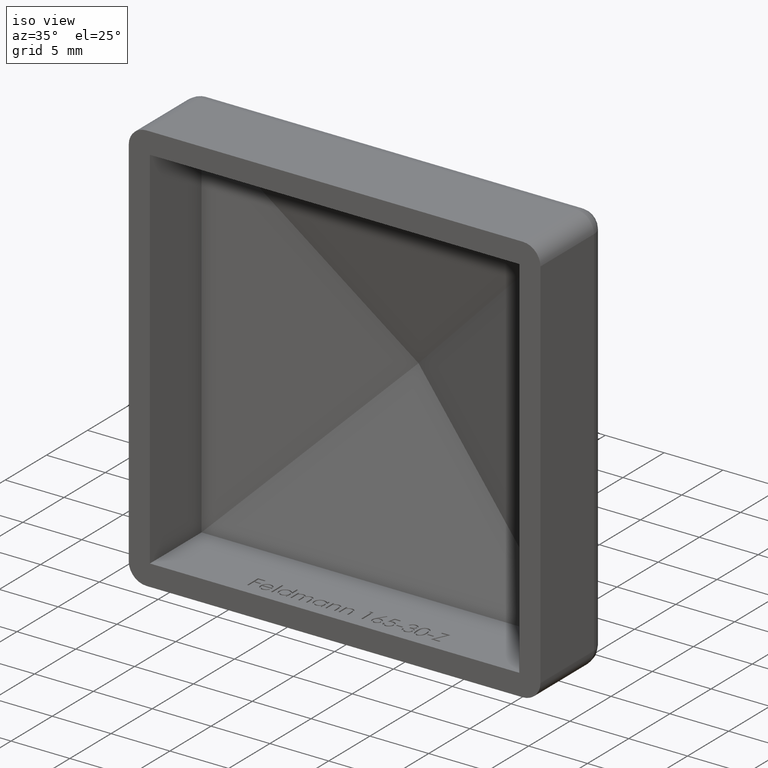
[diagram: clean part render]
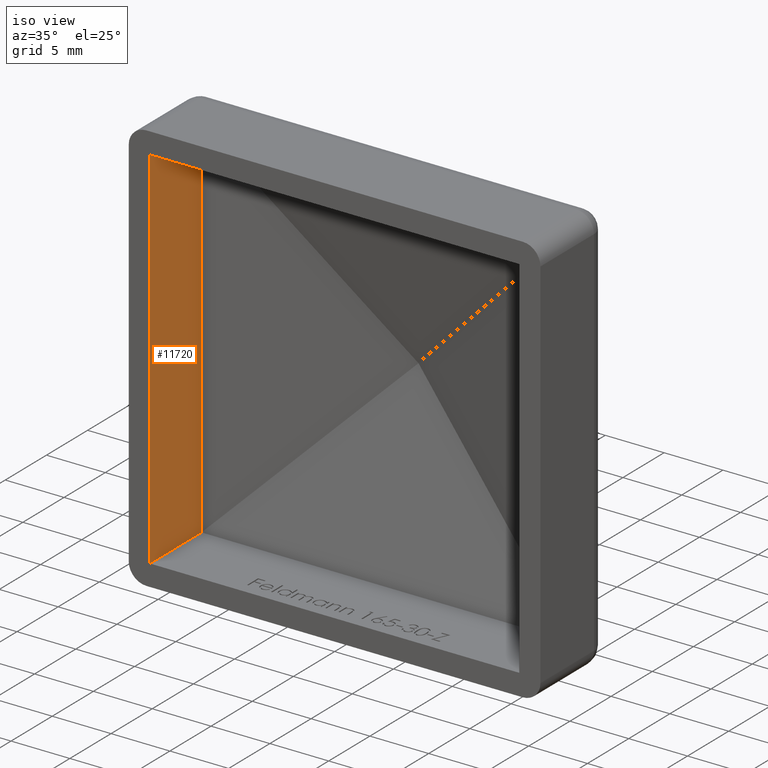
[diagram: same view with one face highlighted and labeled with its STEP entity id]
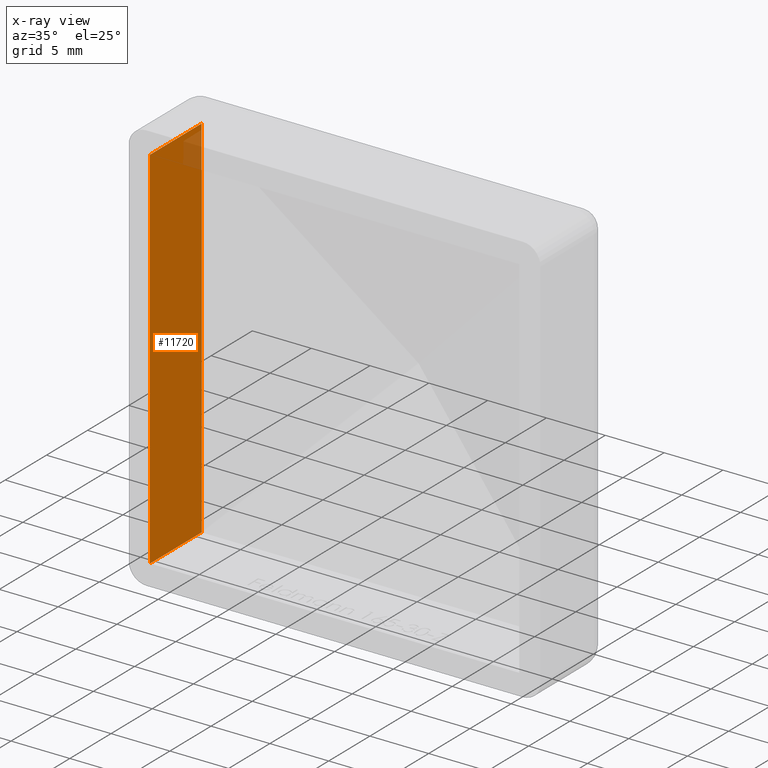
[diagram: x-ray of the same camera — body ghosted, the highlighted face saturated]
A machine part, iso view. The second image highlights one B-rep face of the part: STEP entity #11720.
The next image is the same camera in x-ray: the body ghosted, the highlighted face saturated — about 3% of this face is hidden behind the body in this view.
In plain terms, the highlighted planar face has unit normal (1, 0, -0).
Its self-contained STEP definition (entity closure, byte-faithful):
#119 = ORIENTED_EDGE ( 'NONE', *, *, #4349, .F. ) ;
#204 = DIRECTION ( 'NONE',  ( 0.000000000000000000, 1.000000000000000000, 0.000000000000000000 ) ) ;
#579 = ORIENTED_EDGE ( 'NONE', *, *, #4463, .T. ) ;
#620 = PLANE ( 'NONE',  #6977 ) ;
#1572 = LINE ( 'NONE', #7702, #10918 ) ;
#1753 = VECTOR ( 'NONE', #2299, 1000.000000000000000 ) ;
#1909 = EDGE_LOOP ( 'NONE', ( #119, #579, #4148, #3169 ) ) ;
#2299 = DIRECTION ( 'NONE',  ( 1.982541115402065356E-16, 4.956352788505157844E-17, 1.000000000000000000 ) ) ;
#3169 = ORIENTED_EDGE ( 'NONE', *, *, #6568, .F. ) ;
#3239 = VERTEX_POINT ( 'NONE', #8836 ) ;
#3256 = DIRECTION ( 'NONE',  ( -0.000000000000000000, 1.000000000000000000, 0.000000000000000000 ) ) ;
#3415 = FACE_OUTER_BOUND ( 'NONE', #1909, .T. ) ;
#3441 = LINE ( 'NONE', #7762, #1753 ) ;
#3878 = VERTEX_POINT ( 'NONE', #10725 ) ;
#4148 = ORIENTED_EDGE ( 'NONE', *, *, #8328, .T. ) ;
#4349 = EDGE_CURVE ( 'NONE', #3239, #3878, #7644, .T. ) ;
#4463 = EDGE_CURVE ( 'NONE', #3239, #9107, #1572, .T. ) ;
#5846 = VECTOR ( 'NONE', #204, 1000.000000000000000 ) ;
#6568 = EDGE_CURVE ( 'NONE', #3878, #11014, #9152, .T. ) ;
#6977 = AXIS2_PLACEMENT_3D ( 'NONE', #7018, #9809, #7933 ) ;
#7018 = CARTESIAN_POINT ( 'NONE',  ( -15.69999999999999218, 12.00000000000000000, -17.49999999999999289 ) ) ;
#7644 = LINE ( 'NONE', #10062, #11481 ) ;
#7702 = CARTESIAN_POINT ( 'NONE',  ( -15.69999999999999218, 12.00000000000000000, -15.69999999999999218 ) ) ;
#7762 = CARTESIAN_POINT ( 'NONE',  ( -15.69999999999999218, 6.265767078078683383, -17.49999999999999289 ) ) ;
#7933 = DIRECTION ( 'NONE',  ( -1.982541115402065110E-16, 0.000000000000000000, -1.000000000000000000 ) ) ;
#8328 = EDGE_CURVE ( 'NONE', #9107, #11014, #3441, .T. ) ;
#8836 = CARTESIAN_POINT ( 'NONE',  ( -15.69999999999999218, 0.000000000000000000, -15.69999999999999218 ) ) ;
#9107 = VERTEX_POINT ( 'NONE', #10514 ) ;
#9152 = LINE ( 'NONE', #11044, #5846 ) ;
#9681 = CARTESIAN_POINT ( 'NONE',  ( -15.69999999999999574, 6.265767078078682495, 15.70000000000000284 ) ) ;
#9809 = DIRECTION ( 'NONE',  ( 1.000000000000000000, 0.000000000000000000, -1.982541115402065110E-16 ) ) ;
#10062 = CARTESIAN_POINT ( 'NONE',  ( -15.69999999999999218, 0.000000000000000000, -17.49999999999999289 ) ) ;
#10514 = CARTESIAN_POINT ( 'NONE',  ( -15.69999999999999218, 6.265767078078682495, -15.69999999999999218 ) ) ;
#10725 = CARTESIAN_POINT ( 'NONE',  ( -15.69999999999998508, 0.000000000000000000, 15.70000000000001172 ) ) ;
#10918 = VECTOR ( 'NONE', #3256, 1000.000000000000000 ) ;
#10998 = DIRECTION ( 'NONE',  ( 1.982541115402065110E-16, -0.000000000000000000, 1.000000000000000000 ) ) ;
#11014 = VERTEX_POINT ( 'NONE', #9681 ) ;
#11044 = CARTESIAN_POINT ( 'NONE',  ( -15.69999999999998508, 12.00000000000000000, 15.70000000000001528 ) ) ;
#11481 = VECTOR ( 'NONE', #10998, 1000.000000000000000 ) ;
#11720 = ADVANCED_FACE ( 'NONE', ( #3415 ), #620, .T. ) ;